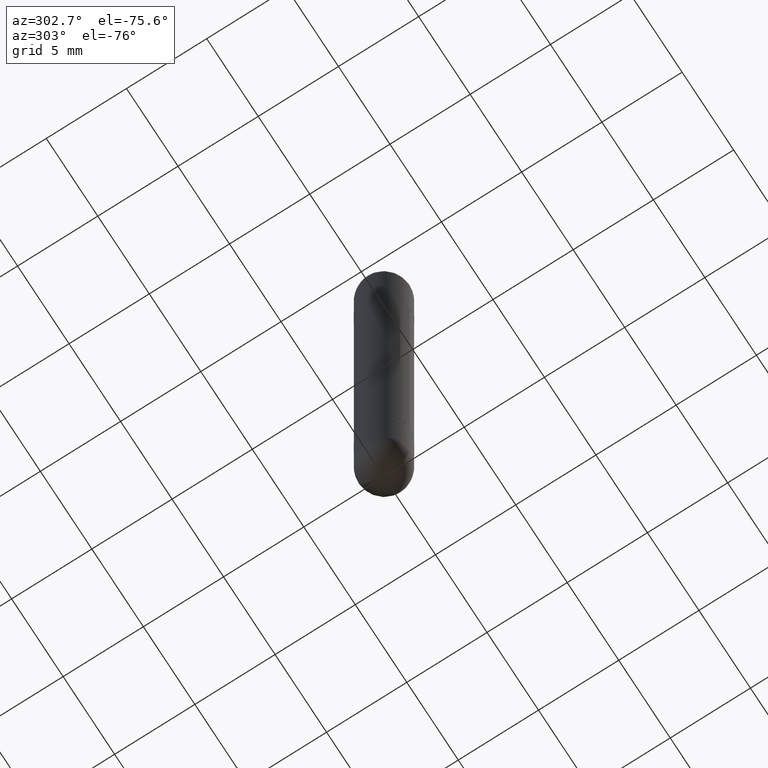
[diagram: clean part render]
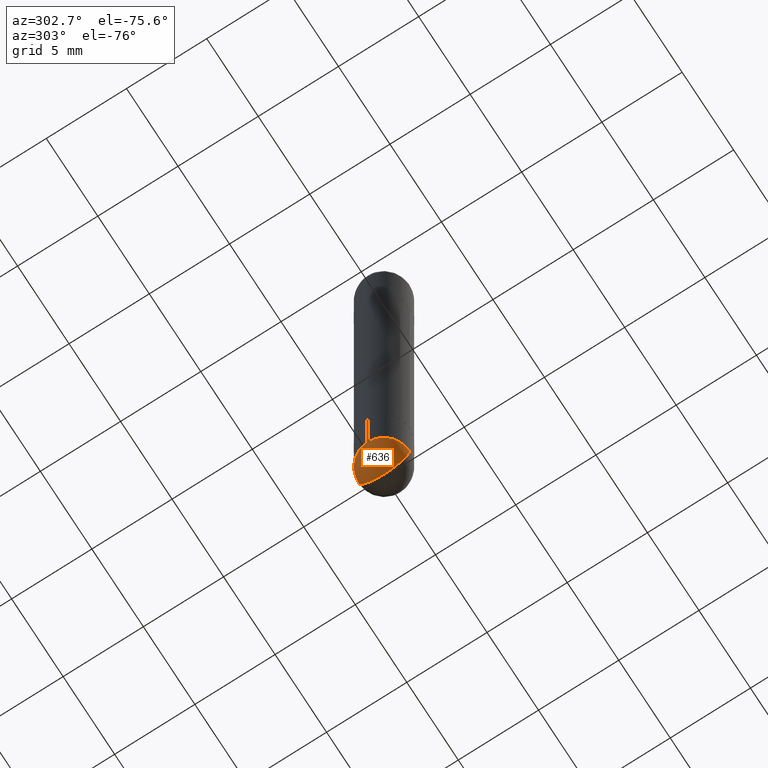
[diagram: same view with one face highlighted and labeled with its STEP entity id]
A machine part, auxiliary view. The second image highlights one B-rep face of the part: STEP entity #636.
In plain terms, the highlighted spherical surface has radius 1.5875 mm.
Its self-contained STEP definition (entity closure, byte-faithful):
#8 = DIRECTION ( 'NONE',  ( 6.982962677686266711E-15, 1.000000000000000000, -4.370956789862805372E-15 ) ) ;
#19 = CIRCLE ( 'NONE', #476, 0.06250000000000022204 ) ;
#29 = AXIS2_PLACEMENT_3D ( 'NONE', #134, #384, #580 ) ;
#35 = ORIENTED_EDGE ( 'NONE', *, *, #647, .T. ) ;
#38 = EDGE_CURVE ( 'NONE', #187, #201, #361, .T. ) ;
#84 = DIRECTION ( 'NONE',  ( -7.105427357601000281E-15, -1.000000000000000000, 0.000000000000000000 ) ) ;
#131 = CARTESIAN_POINT ( 'NONE',  ( 4.364351673554259849E-16, 0.06249999999999485828, -1.437500000000000444 ) ) ;
#134 = CARTESIAN_POINT ( 'NONE',  ( 3.515361408891134418E-29, -5.019004424587023131E-15, -1.437500000000000222 ) ) ;
#139 = CIRCLE ( 'NONE', #211, 0.06250000000000022204 ) ;
#168 = VERTEX_POINT ( 'NONE', #459 ) ;
#169 = DIRECTION ( 'NONE',  ( 1.000000000000000000, -6.982962677686261189E-15, 0.000000000000000000 ) ) ;
#187 = VERTEX_POINT ( 'NONE', #131 ) ;
#198 = SPHERICAL_SURFACE ( 'NONE', #399, 0.06250000000000022204 ) ;
#201 = VERTEX_POINT ( 'NONE', #569 ) ;
#211 = AXIS2_PLACEMENT_3D ( 'NONE', #660, #293, #598 ) ;
#236 = CARTESIAN_POINT ( 'NONE',  ( 3.515361408891134418E-29, -5.019004424587023131E-15, -1.437500000000000222 ) ) ;
#293 = DIRECTION ( 'NONE',  ( 1.000000000000000000, -6.982962677686265922E-15, 4.883557194083112340E-29 ) ) ;
#300 = CIRCLE ( 'NONE', #488, 0.06250000000000001388 ) ;
#317 = ORIENTED_EDGE ( 'NONE', *, *, #792, .F. ) ;
#342 = EDGE_LOOP ( 'NONE', ( #317, #35, #536, #509 ) ) ;
#361 = CIRCLE ( 'NONE', #29, 0.06250000000000001388 ) ;
#369 = VERTEX_POINT ( 'NONE', #541 ) ;
#374 = EDGE_CURVE ( 'NONE', #201, #168, #300, .T. ) ;
#384 = DIRECTION ( 'NONE',  ( -2.445468806185136597E-29, 3.491481338843145583E-15, 1.000000000000000000 ) ) ;
#394 = CARTESIAN_POINT ( 'NONE',  ( 3.184241630977248732E-29, -5.493186792727072638E-15, -1.437500000000000222 ) ) ;
#399 = AXIS2_PLACEMENT_3D ( 'NONE', #394, #514, #8 ) ;
#408 = DIRECTION ( 'NONE',  ( -2.445468806185136597E-29, 3.491481338843145583E-15, 1.000000000000000000 ) ) ;
#459 = CARTESIAN_POINT ( 'NONE',  ( -4.440892098500298784E-16, -0.06250000000000537070, -1.437500000000000000 ) ) ;
#476 = AXIS2_PLACEMENT_3D ( 'NONE', #699, #766, #84 ) ;
#488 = AXIS2_PLACEMENT_3D ( 'NONE', #236, #408, #169 ) ;
#509 = ORIENTED_EDGE ( 'NONE', *, *, #38, .F. ) ;
#514 = DIRECTION ( 'NONE',  ( -1.000000000000000000, 6.982962677686266711E-15, -4.883557194083112901E-29 ) ) ;
#536 = ORIENTED_EDGE ( 'NONE', *, *, #374, .F. ) ;
#541 = CARTESIAN_POINT ( 'NONE',  ( 3.339755826017505569E-29, -5.707577355157435366E-15, -1.500000000000000444 ) ) ;
#569 = CARTESIAN_POINT ( 'NONE',  ( -0.06250000000000001388, -4.247588839220414790E-15, -1.437500000000000222 ) ) ;
#580 = DIRECTION ( 'NONE',  ( 1.000000000000000000, -6.982962677686261189E-15, 0.000000000000000000 ) ) ;
#598 = DIRECTION ( 'NONE',  ( 6.982962677686266711E-15, 1.000000000000000000, 0.000000000000000000 ) ) ;
#636 = ADVANCED_FACE ( 'NONE', ( #709 ), #198, .T. ) ;
#647 = EDGE_CURVE ( 'NONE', #369, #168, #19, .T. ) ;
#660 = CARTESIAN_POINT ( 'NONE',  ( 3.184241630977248732E-29, -5.493186792727072638E-15, -1.437500000000000222 ) ) ;
#699 = CARTESIAN_POINT ( 'NONE',  ( 3.184241630977248732E-29, -5.493186792727072638E-15, -1.437500000000000222 ) ) ;
#709 = FACE_OUTER_BOUND ( 'NONE', #342, .T. ) ;
#766 = DIRECTION ( 'NONE',  ( -1.000000000000000000, 7.105427357601001070E-15, -4.926315508542082329E-29 ) ) ;
#792 = EDGE_CURVE ( 'NONE', #369, #187, #139, .T. ) ;